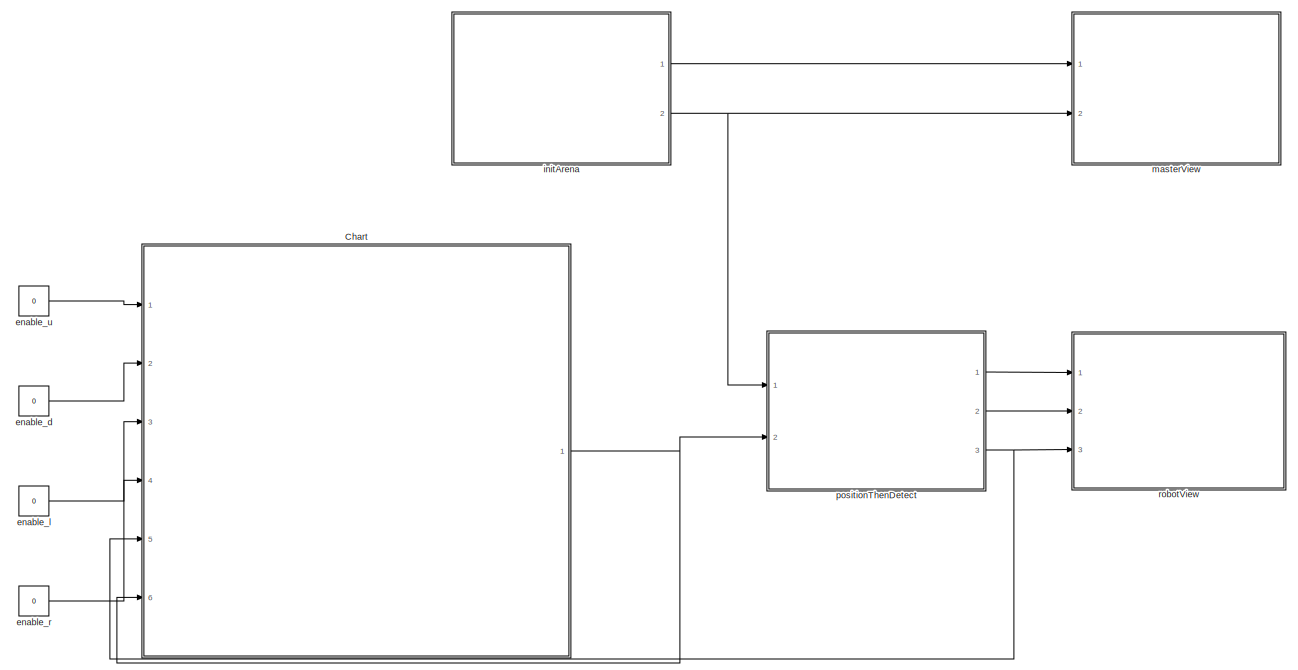
[diagram: root canvas - part 1/2, most of the canvas]
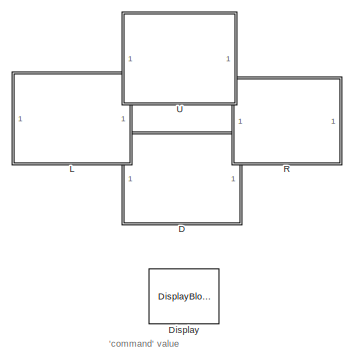
[diagram: root canvas - part 2/2, bottom left region]
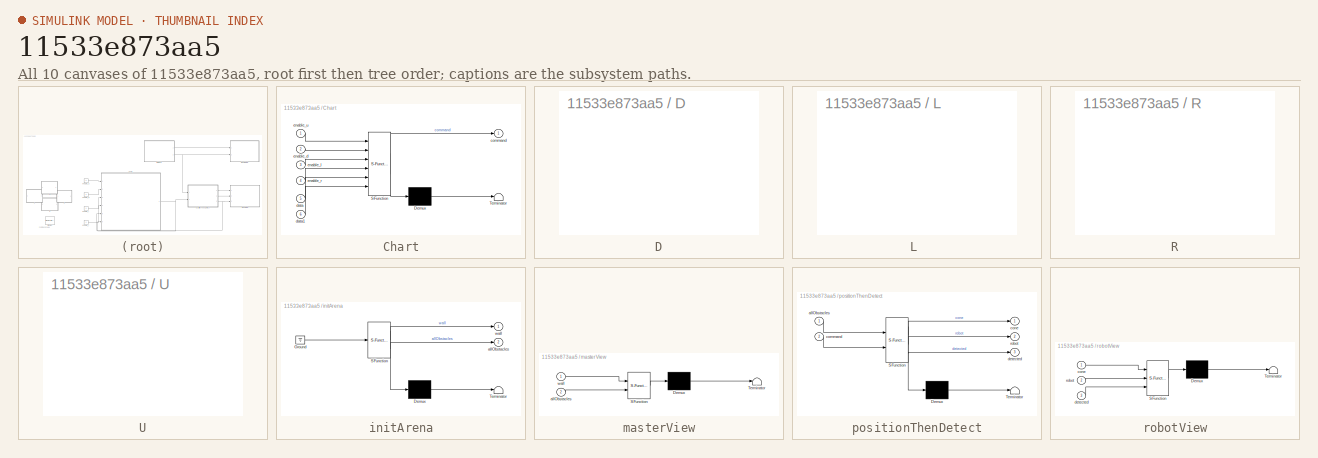
[diagram: thumbnail index - all 10 canvases of the model, root first then tree order]
MODEL slx_11533e873aa5
KIND model
CONFIG AbsTol = auto
CONFIG EnableMultiTasking = off
CONFIG FixedStep = auto
CONFIG MaxStep = auto
CONFIG MinStep = auto
CONFIG RelTol = 1e-3
CONFIG SampleTimeConstraint = Unconstrained
CONFIG Solver = VariableStepAuto
CONFIG SolverName = VariableStepAuto
CONFIG StartTime = 0.0
CONFIG StopTime = inf
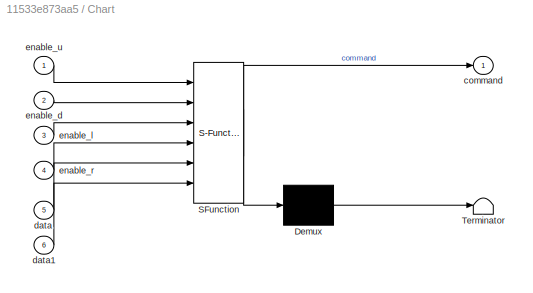
BLOCK [SubSystem] Chart
  ErrorFcn = Stateflow.Translate.translate
  PermitHierarchicalResolution = ExplicitOnly
  Ports = [6, 1]
  RequestExecContextInheritance = off
  SFBlockType = Chart
  TreatAsAtomicUnit = on
BLOCK [Demux] Chart/ Demux 
  Outputs = 1
  Ports = [1, 1]
BLOCK [S-Function] Chart/ SFunction 
  EnableBusSupport = on
  FunctionName = sf_sfun
  PortCounts = [6 2]
  Ports = [6, 2]
  SFcnIsStateOwnerBlock = off
  SFunctionDeploymentMode = off
  Tag = Stateflow S-Function noCollision 3
BLOCK [Terminator] Chart/ Terminator 
BLOCK [Outport] Chart/command
  IconDisplay = Port number
BLOCK [Inport] Chart/data
  IconDisplay = Port number
  Port = 5
BLOCK [Inport] Chart/data1
  IconDisplay = Port number
  Port = 6
BLOCK [Inport] Chart/enable_d
  IconDisplay = Port number
  Port = 2
BLOCK [Inport] Chart/enable_l
  IconDisplay = Port number
  Port = 3
BLOCK [Inport] Chart/enable_r
  IconDisplay = Port number
  Port = 4
BLOCK [Inport] Chart/enable_u
  IconDisplay = Port number
BLOCK [SubSystem] D
  DialogController = hmiCreateDDGDialog
  IsWebBlock = on
  Ports = []
  RequestExecContextInheritance = off
BLOCK [DisplayBlock] Display
  LabelPosition = Hide
  WebBlockId = 14
BLOCK [SubSystem] L 
  DialogController = hmiCreateDDGDialog
  IsWebBlock = on
  Ports = []
  RequestExecContextInheritance = off
BLOCK [SubSystem] R
  DialogController = hmiCreateDDGDialog
  IsWebBlock = on
  Ports = []
  RequestExecContextInheritance = off
BLOCK [SubSystem] U
  DialogController = hmiCreateDDGDialog
  IsWebBlock = on
  Ports = []
  RequestExecContextInheritance = off
BLOCK [Constant] enable_d 
  Value = 0
BLOCK [Constant] enable_l 
  Value = 0
BLOCK [Constant] enable_r 
  Value = 0
BLOCK [Constant] enable_u 
  Value = 0
BLOCK [SubSystem] initArena
  ErrorFcn = Stateflow.Translate.translate
  PermitHierarchicalResolution = ExplicitOnly
  Ports = [0, 2]
  RequestExecContextInheritance = off
  SFBlockType = MATLAB Function
  TreatAsAtomicUnit = on
BLOCK [Demux] initArena/ Demux 
  Outputs = 1
  Ports = [1, 1]
BLOCK [Ground] initArena/ Ground 
BLOCK [S-Function] initArena/ SFunction 
  EnableBusSupport = on
  FunctionName = sf_sfun
  PortCounts = [1 3]
  Ports = [1, 3]
  SFcnIsStateOwnerBlock = off
  SFunctionDeploymentMode = off
  Tag = Stateflow S-Function noCollision 1
BLOCK [Terminator] initArena/ Terminator 
BLOCK [Outport] initArena/allObstacles
  IconDisplay = Port number
  Port = 2
BLOCK [Outport] initArena/wall
  IconDisplay = Port number
BLOCK [SubSystem] masterView
  ErrorFcn = Stateflow.Translate.translate
  PermitHierarchicalResolution = ExplicitOnly
  Ports = [2]
  RequestExecContextInheritance = off
  SFBlockType = MATLAB Function
  TreatAsAtomicUnit = on
BLOCK [Demux] masterView/ Demux 
  Outputs = 1
  Ports = [1, 1]
BLOCK [S-Function] masterView/ SFunction 
  EnableBusSupport = on
  FunctionName = sf_sfun
  PortCounts = [2 1]
  Ports = [2, 1]
  SFcnIsStateOwnerBlock = off
  SFunctionDeploymentMode = off
  Tag = Stateflow S-Function noCollision 4
BLOCK [Terminator] masterView/ Terminator 
BLOCK [Inport] masterView/allObstacles
  IconDisplay = Port number
  Port = 2
BLOCK [Inport] masterView/wall
  IconDisplay = Port number
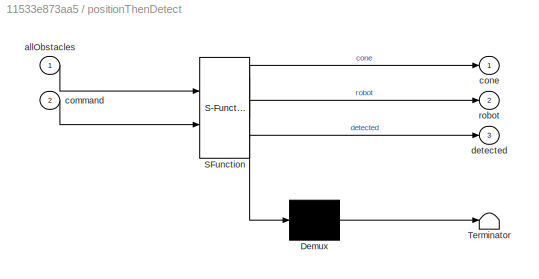
BLOCK [SubSystem] positionThenDetect
  ErrorFcn = Stateflow.Translate.translate
  PermitHierarchicalResolution = ExplicitOnly
  Ports = [2, 3]
  RequestExecContextInheritance = off
  SFBlockType = MATLAB Function
  TreatAsAtomicUnit = on
BLOCK [Demux] positionThenDetect/ Demux 
  Outputs = 1
  Ports = [1, 1]
BLOCK [S-Function] positionThenDetect/ SFunction 
  EnableBusSupport = on
  FunctionName = sf_sfun
  PortCounts = [2 4]
  Ports = [2, 4]
  SFcnIsStateOwnerBlock = off
  SFunctionDeploymentMode = off
  Tag = Stateflow S-Function noCollision 2
BLOCK [Terminator] positionThenDetect/ Terminator 
BLOCK [Inport] positionThenDetect/allObstacles
  IconDisplay = Port number
BLOCK [Inport] positionThenDetect/command
  IconDisplay = Port number
  Port = 2
BLOCK [Outport] positionThenDetect/cone
  IconDisplay = Port number
BLOCK [Outport] positionThenDetect/detected
  IconDisplay = Port number
  Port = 3
BLOCK [Outport] positionThenDetect/robot
  IconDisplay = Port number
  Port = 2
BLOCK [SubSystem] robotView
  ErrorFcn = Stateflow.Translate.translate
  PermitHierarchicalResolution = ExplicitOnly
  Ports = [3]
  RequestExecContextInheritance = off
  SFBlockType = MATLAB Function
  TreatAsAtomicUnit = on
BLOCK [Demux] robotView/ Demux 
  Outputs = 1
  Ports = [1, 1]
BLOCK [S-Function] robotView/ SFunction 
  EnableBusSupport = on
  FunctionName = sf_sfun
  PortCounts = [3 1]
  Ports = [3, 1]
  SFcnIsStateOwnerBlock = off
  SFunctionDeploymentMode = off
  Tag = Stateflow S-Function noCollision 5
BLOCK [Terminator] robotView/ Terminator 
BLOCK [Inport] robotView/cone
  IconDisplay = Port number
BLOCK [Inport] robotView/detected
  IconDisplay = Port number
  Port = 3
BLOCK [Inport] robotView/robot
  IconDisplay = Port number
  Port = 2
ANNOTATION (root): 'command' value
NET Chart:1 -> Chart:6, positionThenDetect:2
LINE enable_d :1 -> Chart:2
LINE enable_l :1 -> Chart:3
LINE enable_r :1 -> Chart:4
LINE enable_u :1 -> Chart:1
LINE initArena:1 -> masterView:1
NET initArena:2 -> masterView:2, positionThenDetect:1
LINE positionThenDetect:1 -> robotView:1
LINE positionThenDetect:2 -> robotView:2
NET positionThenDetect:3 -> Chart:5, robotView:3
note: NET lines group one-source signal fan-out (src -> all destinations, sorted); 1:1 wires keep LINE
CHART initArena states=1 transitions=1
  STATE_LABEL 'eML_blk_kernel()'
  STATE_LABEL "SCRIPT:\nfunction [wall, allObstacles] = initArena\n    % Clear plot\n    clf('reset')\n    \n    % Parameters \n    xwall = 5756;\n    ywall = 3691;\n    distance_from_wall = 300;\n    \n    % Generate field wall \n    wall = generateRectangle(xwall,ywall);\n\n    % Generate virtual limit \n    limit = generateRectangle(xwall-2*distance_from_wall,ywall-2*distance_from_wall);\n    limit(:,1) = limit(:,1) + dista...<+967ch>"
CHART positionThenDetect states=1 transitions=1
  STATE_LABEL 'eML_blk_kernel()'
  STATE_LABEL 'SCRIPT:\nfunction [cone, robot, detected] = positionThenDetect(allObstacles, command)\n    persistent xpos ypos\n    if isempty(xpos)\n        xpos = 2000;\n        ypos = 2000;\n    end\n    \n    % Base vision cone \n    line1 = [0,150,0; 300,450,0;];\n    line2 = [0,150,0; -300,450,0;];\n    line3 = [-300,450,0; 300,450,0;];\n    base_cone = vertcat(line1, line2, line3);\n    \n    % Base robot \n    xbase_ro...<+1015ch>'
CHART Chart states=21 transitions=45
  STATE_LABEL 'up3\nentry: command = 1'
  STATE_LABEL 'down3\nentry: command = 2'
  STATE_LABEL 'up2\nentry: command=1'
  STATE_LABEL 'left2\nentry: command=3'
  STATE_LABEL 'right2\nentry: command=4'
  STATE_LABEL 'left3\nentry: command = 3'
  STATE_LABEL 'up4\nentry: command = 1'
  STATE_LABEL 'down4\nentry: command = 2'
  STATE_LABEL 'right4\nentry: command = 4'
  STATE_LABEL 'detected_down\nentry: command = 0'
  STATE_LABEL 'detected_right\nentry: command = 0'
  STATE_LABEL 'detected_left\nentry: command = 0'
  STATE_LABEL 'no_input\nentry: command = 0\n'
  STATE_LABEL 'detected_up\nentry: command = 0\n'
  STATE_LABEL 'up\nentry: command = 1'
  STATE_LABEL 'down\nentry: command = 2'
  STATE_LABEL 'left\nentry: command = 3'
  STATE_LABEL 'right\nentry: command = 4'
  STATE_LABEL 'down1 \nentry:command = 2'
  STATE_LABEL 'left1\nentry: command = 3'
  STATE_LABEL 'right_1\nentry: command = 4'
CHART masterView states=1 transitions=1
  STATE_LABEL 'eML_blk_kernel()'
  STATE_LABEL "SCRIPT:\nfunction masterView(wall, allObstacles)\n    % Visualize data \n    hold on\n    grid on\n    grid minor\n    xlim([-800 6600])\n    ylim([-700 4400])\n    plot(wall(:,1), wall(:,2), 'ks-');\n    plot(allObstacles(:,1), allObstacles(:,2), 'bs');\n    drawnow\nend"
CHART robotView states=1 transitions=1
  STATE_LABEL 'eML_blk_kernel()'
  STATE_LABEL "SCRIPT:\nfunction robotView(cone, robot, detected) \n    % persistent variables are kept local to the function each time it is\n    % called \n    persistent coneFig botFig\n    \n    % coneFig and botFig are initialized as empty, so we can use that to\n    % set up a 'run once' part of the funciton that only happens the first\n    % time it gets called \n    if isempty(coneFig)\n        coneFig = plot(cone...<+557ch>"
